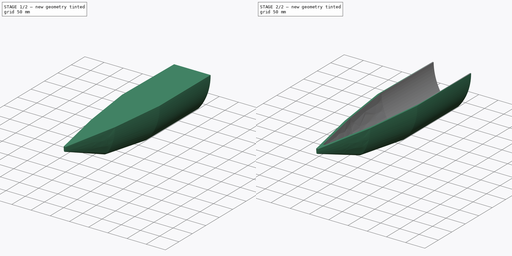
[diagram: build sequence overview — one tinted view per stage of 2, left to right]
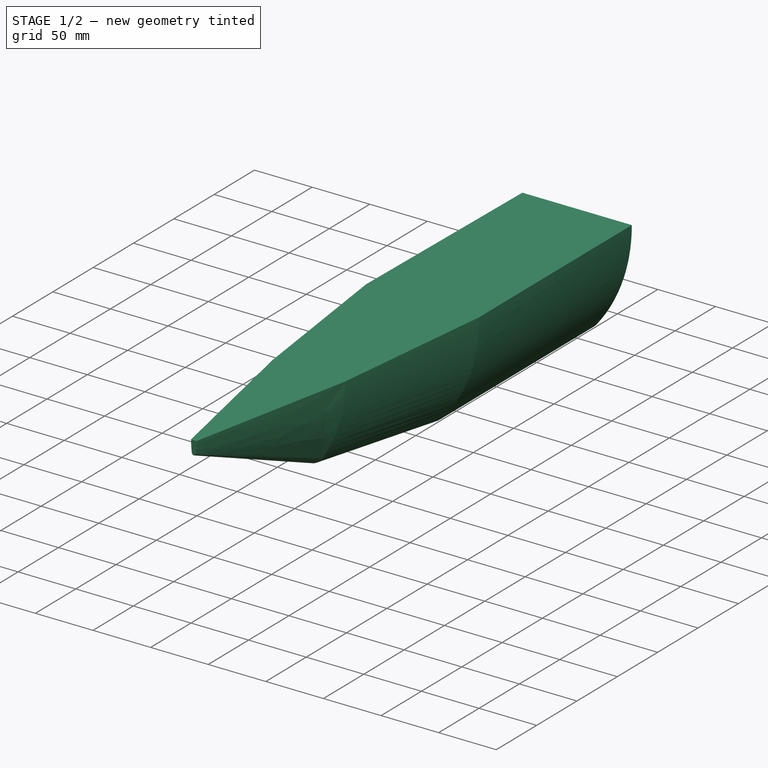
[diagram: stage 1 of 2 — iso view after this stage's code; geometry added in this stage tinted green]
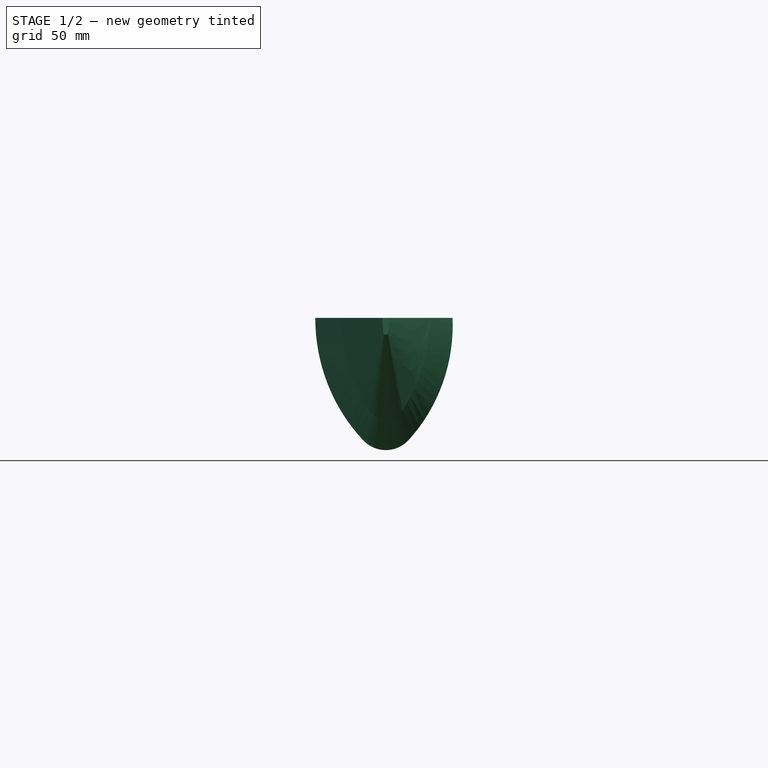
[diagram: stage 1 of 2 — front view after this stage's code; geometry added in this stage tinted green]
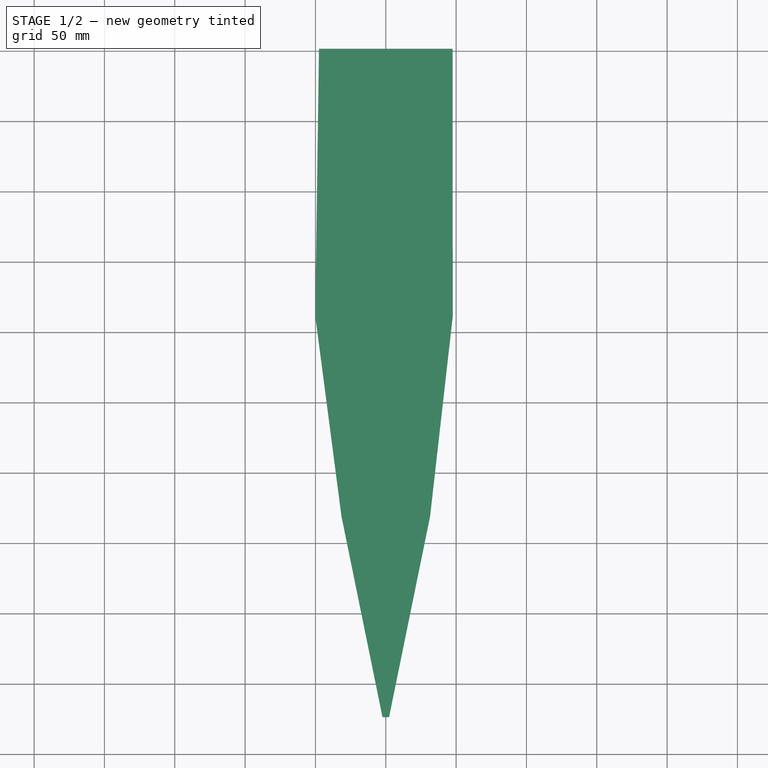
[diagram: stage 1 of 2 — top view after this stage's code; geometry added in this stage tinted green]
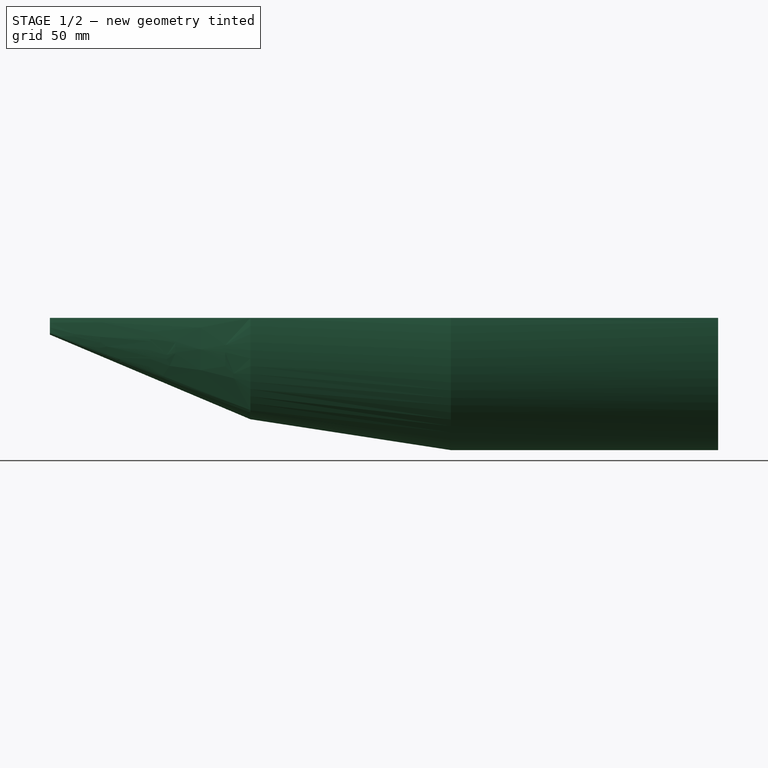
[diagram: stage 1 of 2 — right view after this stage's code; geometry added in this stage tinted green]
FCSTD DOCUMENT  (FreeCAD 0.20R29410 (Git))
Label: Casco_barco
License: All rights reserved
LicenseURL: http://en.wikipedia.org/wiki/All_rights_reserved
objects: Sketcher::SketchObject×4, PartDesign::Plane×3, PartDesign::AdditiveLoft×1, PartDesign::Body×1, Part::FeaturePython×1, Part::Cut×1
note: 12 computed .brp shape members not serialized (recipe doc carries the construction recipe); baked Part::Feature solids carry a one-line shape summary decoded from their .brp

FEATURE [Sketcher::SketchObject] Sketch
  FullyConstrained = false
  MapMode = 5
  Placement = pos=(0,0,0) rot=(1,0,0;1.5708rad)
  Support = -> [XZ_Plane]
  sketch-geometry (4):
    g0: ArcOfCircle CenterX=81.1131 CenterY=100 CenterZ=0 NormalX=0 NormalY=0 NormalZ=1 AngleXU=0 Radius=131.113 StartAngle=3.14159 EndAngle=3.85358
    g1: ArcOfCircle CenterX=-81.1131 CenterY=100 CenterZ=0 NormalX=0 NormalY=0 NormalZ=1 AngleXU=0 Radius=131.113 StartAngle=5.5712 EndAngle=6.28319
    g2: LineSegment StartX=-50 StartY=100 StartZ=0 EndX=50 EndY=100 EndZ=0
    g3: ArcOfCircle CenterX=0 CenterY=30 CenterZ=0 NormalX=0 NormalY=0 NormalZ=1 AngleXU=0 Radius=23.9714 StartAngle=3.85358 EndAngle=5.5712
  constraints (11):
    c: Horizontal(g0,g0)
    c: DistanceX(g0,g1) = 100
    c: Symmetric(g0,g1,g-2)
    c: Coincident(g2,g0)
    c: Coincident(g2,g1)
    c: DistanceY(g-1,g1) = 100
    c: Horizontal(g0,g1)
    c: Tangent(g0,g3) = -1.5708
    c: Tangent(g1,g3) = -1.5708
    c: DistanceY(g-1,g3) = 30
    c: PointOnObject(g3,g-2)
FEATURE [PartDesign::Plane] DatumPlane
  AttachmentOffset = pos=(0,0,350) rot=(0,0,1;0rad)
  Length = 125.435
  MapMode = 5
  Placement = pos=(0,-350,-7.77e-14) rot=(1,0,0;1.5708rad)
  ResizeMode = 0
  Support = -> [XZ_Plane]
  Width = 147.669
FEATURE [Sketcher::SketchObject] Sketch001
  ExternalGeometry = -> [Sketch]
  FullyConstrained = false
  MapMode = 5
  Placement = pos=(0,-350,-7.77e-14) rot=(1,0,0;1.5708rad)
  Support = -> [DatumPlane]
  sketch-geometry (4):
    g0: LineSegment StartX=-33.1458 StartY=100 StartZ=0 EndX=33.1458 EndY=100 EndZ=0
    g1: ArcOfCircle CenterX=81.1131 CenterY=100 CenterZ=0 NormalX=0 NormalY=0 NormalZ=1 AngleXU=0 Radius=114.259 StartAngle=3.14159 EndAngle=3.7525
    g2: ArcOfCircle CenterX=-81.1131 CenterY=100 CenterZ=0 NormalX=0 NormalY=0 NormalZ=1 AngleXU=0 Radius=114.259 StartAngle=5.67227 EndAngle=6.28319
    g3: ArcOfCircle CenterX=6.9e-15 CenterY=43.1985 CenterZ=0 NormalX=0 NormalY=0 NormalZ=1 AngleXU=0 Radius=15.2349 StartAngle=3.7525 EndAngle=5.67227
  constraints (8):
    c: Coincident(g1,g0)
    c: Coincident(g1,g-5)
    c: Coincident(g2,g0)
    c: Symmetric(g0,g0,g-2)
    c: Coincident(g2,g-3)
    c: Horizontal(g0,g-5)
    c: Tangent(g1,g3) = -1.5708
    c: Tangent(g2,g3) = -1.5708
FEATURE [PartDesign::Plane] DatumPlane001
  AttachmentOffset = pos=(0,0,500) rot=(0,0,1;0rad)
  Length = 125.435
  MapMode = 5
  Placement = pos=(0,-500,-1.11e-13) rot=(1,0,0;1.5708rad)
  ResizeMode = 0
  Support = -> [XZ_Plane]
  Width = 147.669
FEATURE [Sketcher::SketchObject] Sketch002
  ExternalGeometry = -> [Sketch]
  FullyConstrained = true
  MapMode = 5
  Placement = pos=(0,-500,-1.11e-13) rot=(1,0,0;1.5708rad)
  Support = -> [DatumPlane001]
  sketch-geometry (4):
    g0: LineSegment StartX=-2.5 StartY=100 StartZ=0 EndX=2.5 EndY=100 EndZ=0
    g1: ArcOfCircle CenterX=81.1131 CenterY=100 CenterZ=0 NormalX=0 NormalY=0 NormalZ=1 AngleXU=0 Radius=83.6131 StartAngle=3.14159 EndAngle=3.26426
    g2: ArcOfCircle CenterX=-81.1131 CenterY=100 CenterZ=0 NormalX=0 NormalY=0 NormalZ=1 AngleXU=0 Radius=83.6131 StartAngle=6.16052 EndAngle=6.28319
    g3: ArcOfCircle CenterX=-6e-16 CenterY=90 CenterZ=0 NormalX=0 NormalY=0 NormalZ=1 AngleXU=0 Radius=1.8859 StartAngle=3.26426 EndAngle=6.16052
  constraints (10):
    c: Coincident(g1,g0)
    c: Coincident(g0,g2)
    c: Coincident(g2,g-3)
    c: Coincident(g-5,g1)
    c: Horizontal(g0,g2)
    c: Symmetric(g0,g0,g-2)
    c: Tangent(g1,g3) = -1.5708
    c: Tangent(g2,g3) = -1.5708
    c: DistanceX(g0,g0) = 5
    c: DistanceY(g3,g0) = 10
FEATURE [PartDesign::Plane] DatumPlane002
  AttachmentOffset = pos=(0,0,200) rot=(0,0,1;0rad)
  Length = 125.435
  MapMode = 5
  Placement = pos=(0,-200,-4.44e-14) rot=(1,0,0;1.5708rad)
  ResizeMode = 0
  Support = -> [XZ_Plane]
  Width = 147.669
FEATURE [Sketcher::SketchObject] Sketch003
  ExternalGeometry = -> [Sketch]
  FullyConstrained = false
  MapMode = 5
  Placement = pos=(0,-200,-4.44e-14) rot=(1,0,0;1.5708rad)
  Support = -> [DatumPlane002]
  sketch-geometry (4):
    g0: ArcOfCircle CenterX=70.3345 CenterY=99.9244 CenterZ=0 NormalX=0 NormalY=0 NormalZ=1 AngleXU=0 Radius=123.102 StartAngle=3.14097 EndAngle=3.91035
    g1: ArcOfCircle CenterX=1.5e-15 CenterY=30 CenterZ=0 NormalX=0 NormalY=0 NormalZ=1 AngleXU=0 Radius=23.9714 StartAngle=3.85358 EndAngle=5.5712
    g2: ArcOfCircle CenterX=-67.629 CenterY=94.9861 CenterZ=0 NormalX=0 NormalY=0 NormalZ=1 AngleXU=0 Radius=117.736 StartAngle=5.5286 EndAngle=6.32578
    g3: LineSegment StartX=-52.7674 StartY=100.001 StartZ=0 EndX=50 EndY=100 EndZ=0
  constraints (8):
    c: Coincident(g1,g-5)
    c: Coincident(g0,g1)
    c: Coincident(g3,g0)
    c: Coincident(g2,g3)
    c: Coincident(g2,g1)
    c: Coincident(g1,g-4)
    c: Coincident(g2,g-3)
    c: Coincident(g1,g-4)
FEATURE [PartDesign::AdditiveLoft] AdditiveLoft
  Closed = false
  Placement = pos=(0,0,0) rot=(1,0,0;1.5708rad)
  Profile = -> Sketch
  Refine = true
  Ruled = true
  Sections = -> [Sketch003,Sketch001,Sketch002]
FEATURE [PartDesign::Body] Body  label="Casco"
  Group = -> [Sketch,DatumPlane,Sketch001,DatumPlane001,Sketch002,DatumPlane002,Sketch003,AdditiveLoft]
  Origin = -> Origin
  Tip = -> AdditiveLoft
FEATURE [Part::FeaturePython] Clone  label="Casco001"  # Draft clone (typed FeaturePython)
  AttacherType = Attacher::AttachEngine3D
  Fuse = false
  Objects = -> [Body]
  Placement = pos=(0,0,3) rot=(0,0,1;0rad)
  Scale = (0.95,0.95,1)
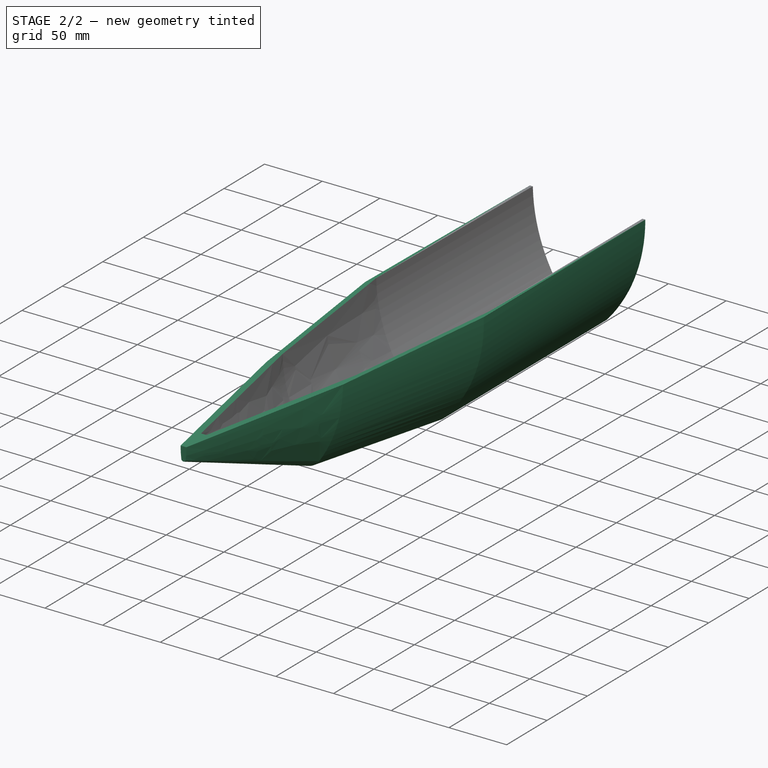
[diagram: stage 2 of 2 — iso view after this stage's code; geometry added in this stage tinted green]
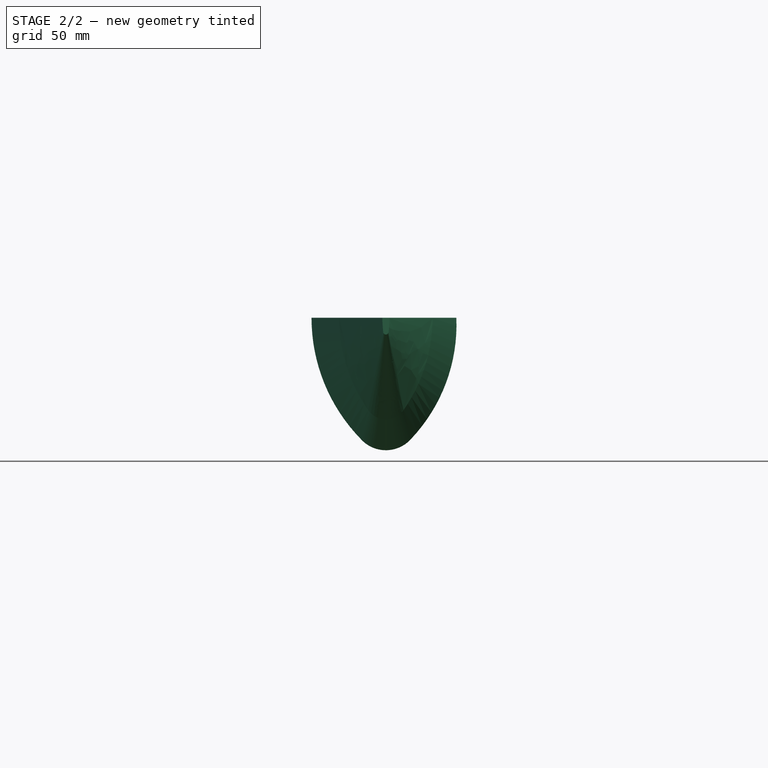
[diagram: stage 2 of 2 — front view after this stage's code; geometry added in this stage tinted green]
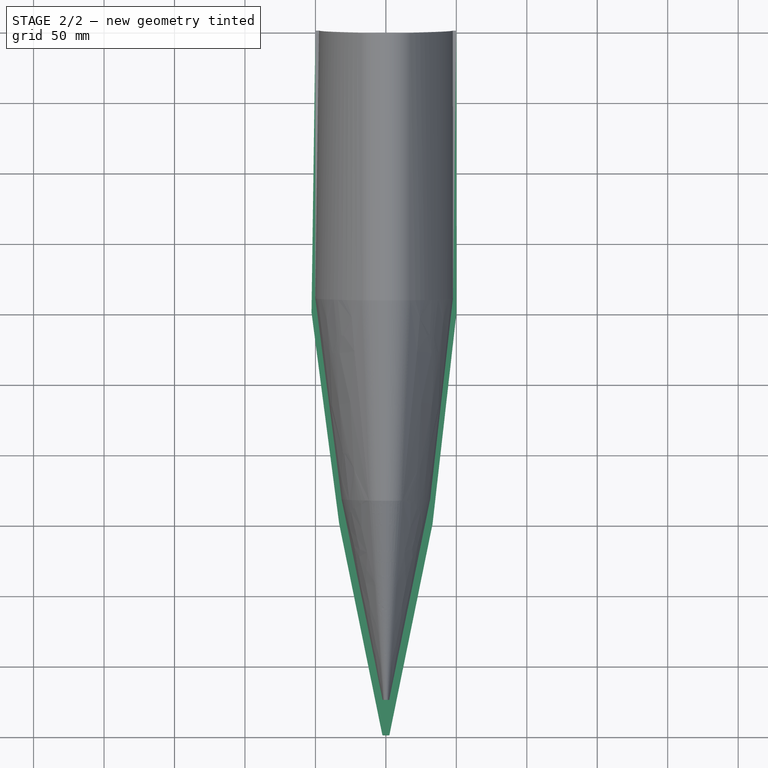
[diagram: stage 2 of 2 — top view after this stage's code; geometry added in this stage tinted green]
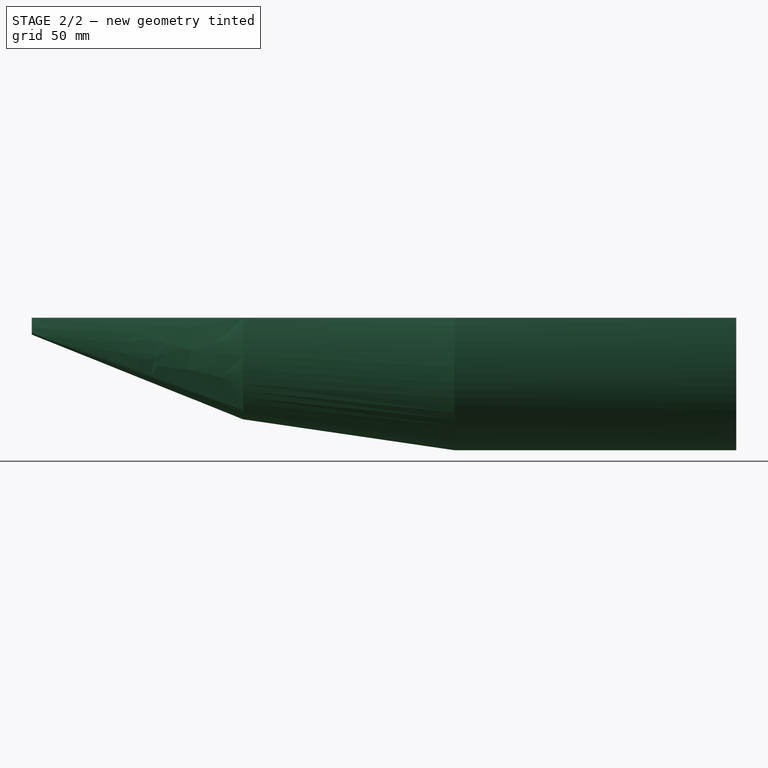
[diagram: stage 2 of 2 — right view after this stage's code; geometry added in this stage tinted green]
FEATURE [Part::Cut] Cut
  Base = -> Body
  Tool = -> Clone
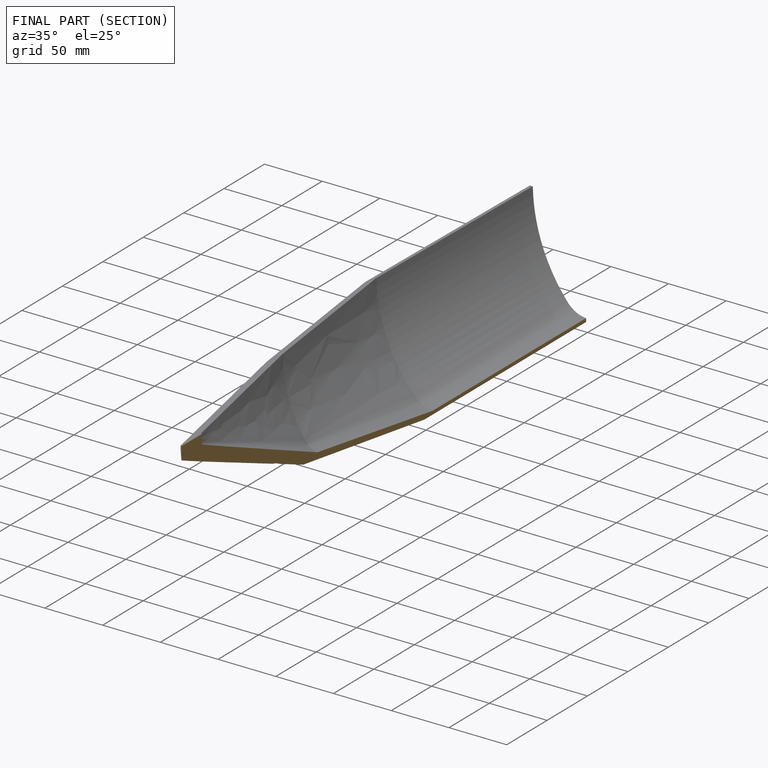
[diagram: finished part — half-section view (interior)]
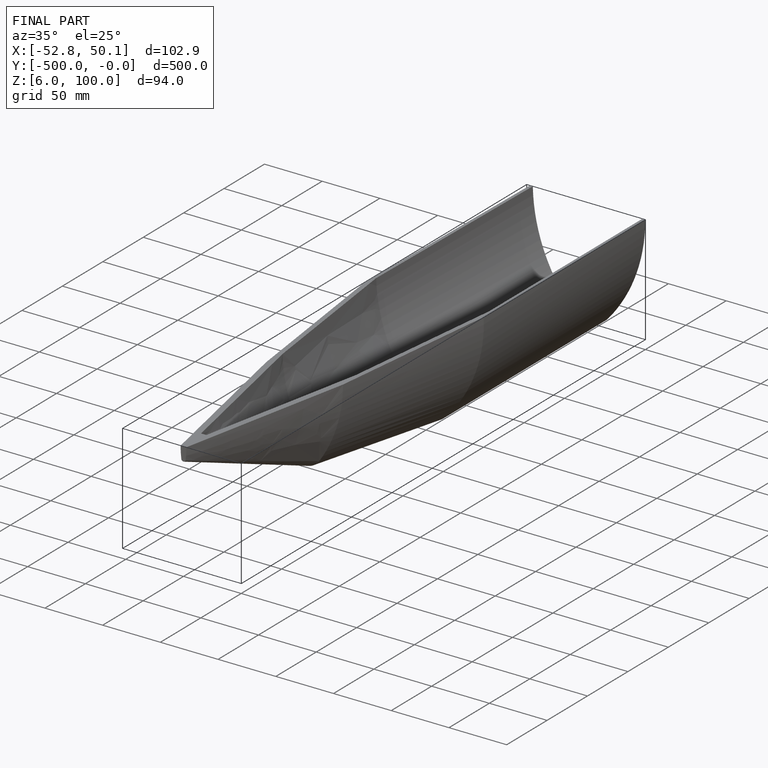
[diagram: finished part — iso view with bounding-box wireframe]
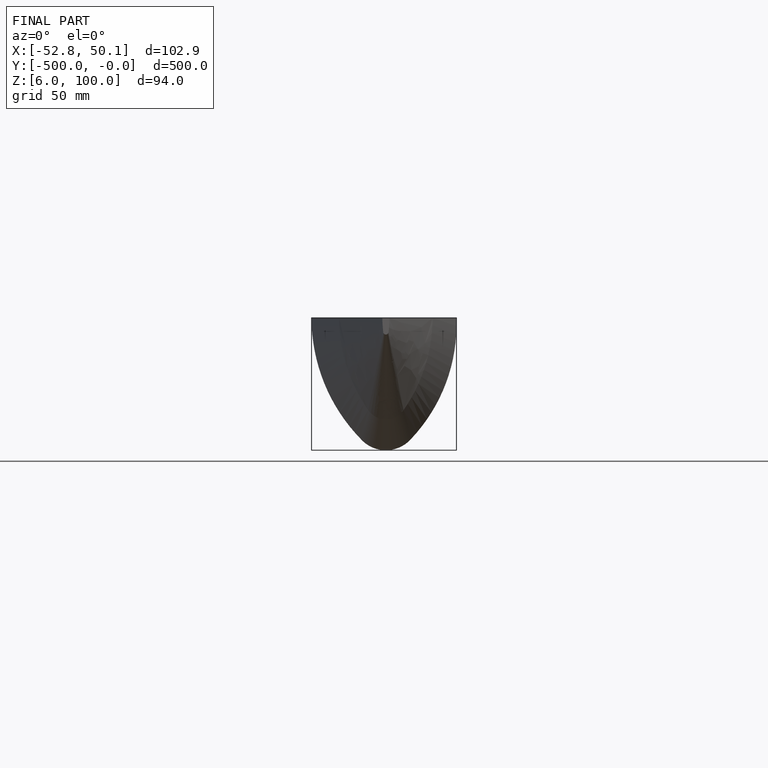
[diagram: finished part — front view with bounding-box wireframe]
